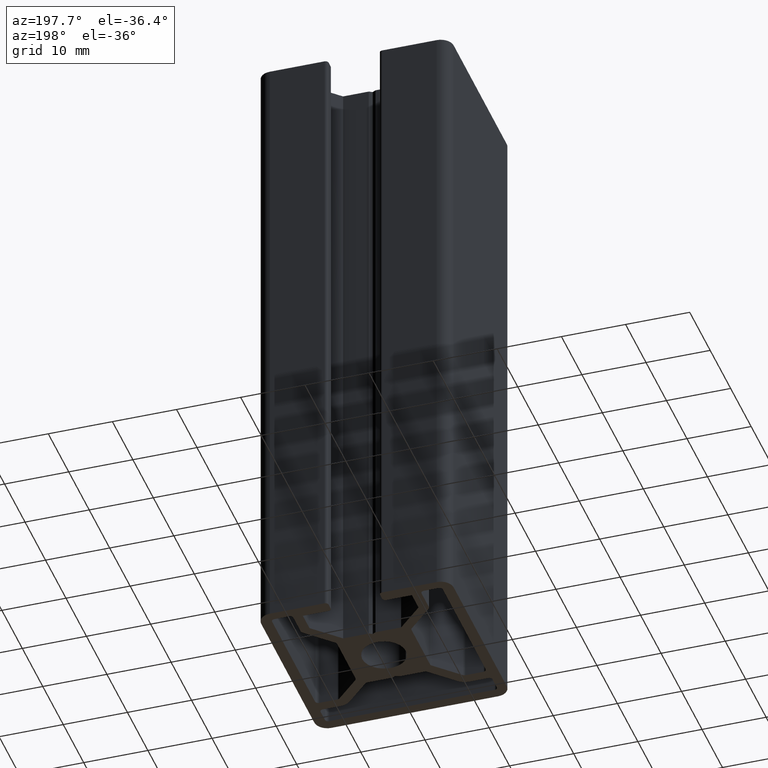
[diagram: clean part render]
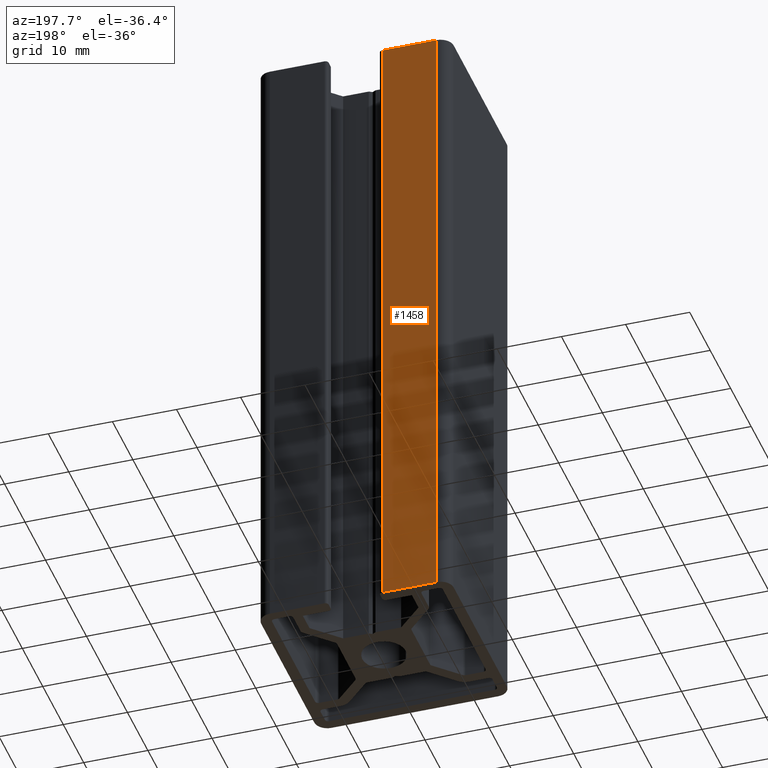
[diagram: same view with one face highlighted and labeled with its STEP entity id]
A machine part, auxiliary view. The second image highlights one B-rep face of the part: STEP entity #1458.
In plain terms, the highlighted planar face has unit normal (0, 1, 0).
Its self-contained STEP definition (entity closure, byte-faithful):
#173=FACE_OUTER_BOUND('',#247,.T.);
#247=EDGE_LOOP('',(#1174,#1175,#1176,#1177));
#322=LINE('',#2167,#476);
#402=LINE('',#2397,#556);
#403=LINE('',#2399,#557);
#404=LINE('',#2400,#558);
#476=VECTOR('',#1740,100.);
#556=VECTOR('',#1966,8.50000000575679);
#557=VECTOR('',#1967,100.);
#558=VECTOR('',#1968,8.50000000575679);
#622=VERTEX_POINT('',#2163);
#623=VERTEX_POINT('',#2165);
#700=VERTEX_POINT('',#2396);
#701=VERTEX_POINT('',#2398);
#788=EDGE_CURVE('',#622,#623,#322,.T.);
#902=EDGE_CURVE('',#700,#623,#402,.T.);
#903=EDGE_CURVE('',#700,#701,#403,.T.);
#904=EDGE_CURVE('',#701,#622,#404,.T.);
#1174=ORIENTED_EDGE('',*,*,#788,.T.);
#1175=ORIENTED_EDGE('',*,*,#902,.F.);
#1176=ORIENTED_EDGE('',*,*,#903,.T.);
#1177=ORIENTED_EDGE('',*,*,#904,.T.);
#1389=PLANE('',#1583);
#1458=ADVANCED_FACE('',(#173),#1389,.T.);
#1583=AXIS2_PLACEMENT_3D('',#2395,#1964,#1965);
#1740=DIRECTION('',(0.,0.,-1.));
#1964=DIRECTION('center_axis',(1.51799940237017E-11,1.,0.));
#1965=DIRECTION('ref_axis',(-1.,1.51800350067788E-11,0.));
#1966=DIRECTION('',(1.,-1.51799940237017E-11,0.));
#1967=DIRECTION('',(0.,0.,1.));
#1968=DIRECTION('',(1.,-1.51799940237017E-11,0.));
#2163=CARTESIAN_POINT('',(-4.49999998576647,14.9999999901317,100.));
#2165=CARTESIAN_POINT('',(-4.49999998576647,14.9999999901317,0.));
#2167=CARTESIAN_POINT('',(-4.49999998575889,14.9999999961942,0.));
#2395=CARTESIAN_POINT('Origin',(12.9999999917377,14.9999999959286,0.));
#2396=CARTESIAN_POINT('',(-12.9999999915233,14.9999999963232,0.));
#2397=CARTESIAN_POINT('',(6.49999999598268,14.9999999960272,0.));
#2398=CARTESIAN_POINT('',(-12.9999999915233,14.9999999963232,100.));
#2399=CARTESIAN_POINT('',(-12.9999999915233,14.9999999963232,0.));
#2400=CARTESIAN_POINT('',(6.49999999598268,14.9999999960272,100.));